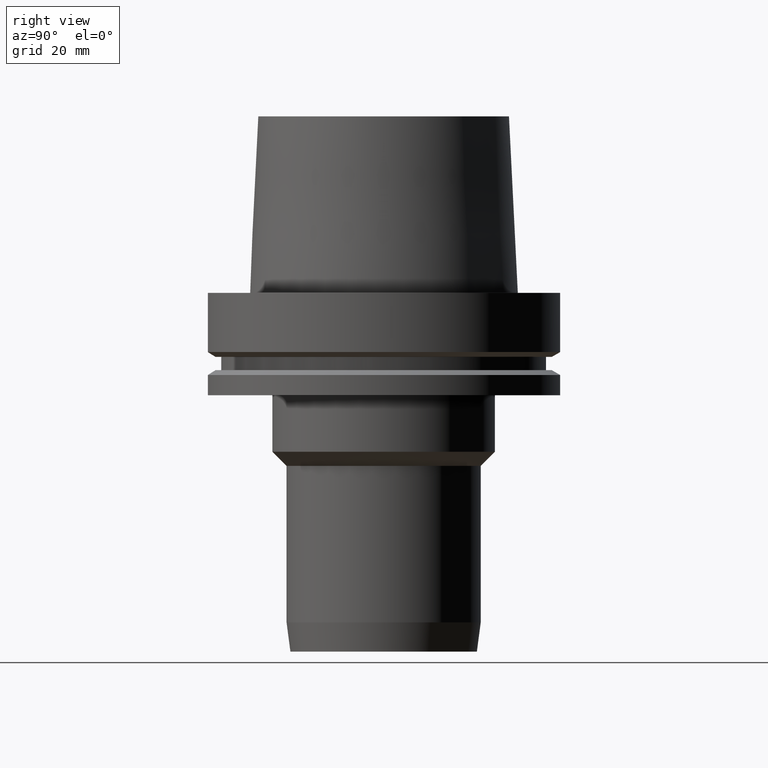
[diagram: clean part render]
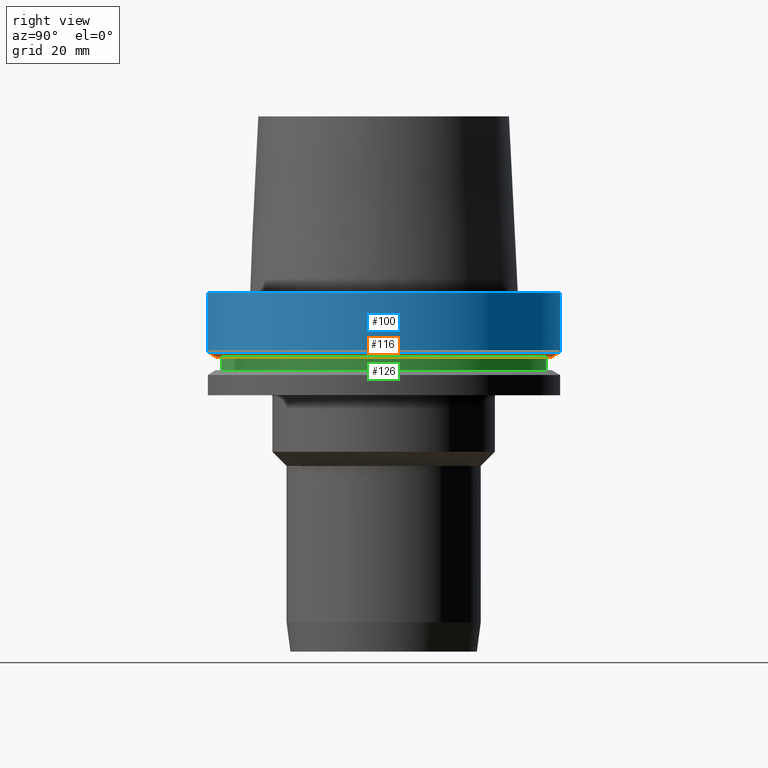
[diagram: same view with three faces highlighted in distinct colors, each labeled with its STEP entity id]
A machine part, right view with three faces highlighted in distinct colors.
Their STEP definitions:

[orange] entity #116 — the highlighted conical surface has half-angle 60 deg.
#116=ADVANCED_FACE('Unnamed[1]',(#247,#248),#249,.T.);
#123=EDGE_CURVE('Unnamed[1]',#259,#259,#260,.T.);
#128=EDGE_CURVE('Unnamed[1]',#267,#267,#268,.T.);
#247=FACE_BOUND('',#403,.T.);
#248=FACE_BOUND('',#404,.T.);
#249=CONICAL_SURFACE('',#405,48.81129763,1.04719755328238);
#259=VERTEX_POINT('',#418);
#260=CIRCLE('',#419,50.0);
#267=VERTEX_POINT('',#428);
#268=CIRCLE('',#429,47.62259526);
#403=EDGE_LOOP('',(#549));
#404=EDGE_LOOP('',(#550));
#405=AXIS2_PLACEMENT_3D('',#551,#552,#553);
#418=CARTESIAN_POINT('',(1.0257889421431E-015,50.0,-16.75240474));
#419=AXIS2_PLACEMENT_3D('',#563,#564,#565);
#428=CARTESIAN_POINT('',(1.10983616172729E-015,47.62259526,-18.125));
#429=AXIS2_PLACEMENT_3D('',#572,#573,#574);
#549=ORIENTED_EDGE('',*,*,#128,.F.);
#550=ORIENTED_EDGE('',*,*,#123,.T.);
#551=CARTESIAN_POINT('',(1.06781255193519E-015,2.13562510387038E-015,-17.43870237));
#552=DIRECTION('',(-6.12323399573677E-017,-1.22464679914711E-016,1.0));
#553=DIRECTION('',(-1.23259516440792E-032,1.0,1.22464679914711E-016));
#563=CARTESIAN_POINT('',(1.0257889421431E-015,2.05157788428619E-015,-16.75240474));
#564=DIRECTION('',(6.12323399573677E-017,1.22464679914736E-016,-1.0));
#565=DIRECTION('',(-1.23259516440783E-032,1.0,1.22464679914736E-016));
#572=CARTESIAN_POINT('',(1.10983616172729E-015,2.21967232345458E-015,-18.125));
#573=DIRECTION('',(6.12323399573676E-017,1.22464679914752E-016,-1.0));
#574=DIRECTION('',(-1.23259516440801E-032,1.0,1.22464679914752E-016));

[blue] entity #100 — the highlighted cylindrical surface (bore or boss wall) has radius 50 mm, axis along (0, 0, -1).
#100=ADVANCED_FACE('Unnamed[1]',(#221,#222),#223,.T.);
#118=EDGE_CURVE('Unnamed[1]',#251,#251,#252,.T.);
#123=EDGE_CURVE('Unnamed[1]',#259,#259,#260,.T.);
#221=FACE_BOUND('',#371,.T.);
#222=FACE_BOUND('',#372,.T.);
#223=CYLINDRICAL_SURFACE('',#373,50.0);
#251=VERTEX_POINT('',#408);
#252=CIRCLE('',#409,50.0);
#259=VERTEX_POINT('',#418);
#260=CIRCLE('',#419,50.0);
#371=EDGE_LOOP('',(#519));
#372=EDGE_LOOP('',(#520));
#373=AXIS2_PLACEMENT_3D('',#521,#522,#523);
#408=CARTESIAN_POINT('',(-1.81547968506605E-031,50.0,-9.76766004263236E-016));
#409=AXIS2_PLACEMENT_3D('',#554,#555,#556);
#418=CARTESIAN_POINT('',(1.0257889421431E-015,50.0,-16.75240474));
#419=AXIS2_PLACEMENT_3D('',#563,#564,#565);
#519=ORIENTED_EDGE('',*,*,#123,.F.);
#520=ORIENTED_EDGE('',*,*,#118,.T.);
#521=CARTESIAN_POINT('',(5.12894471071548E-016,1.0257889421431E-015,-8.37620236999999));
#522=DIRECTION('',(6.12323399573677E-017,1.22464679914736E-016,-1.0));
#523=DIRECTION('',(-1.23259516440783E-032,1.0,1.22464679914736E-016));
#554=CARTESIAN_POINT('',(0.0,0.0,0.0));
#555=DIRECTION('',(6.12323399573677E-017,1.22464679914736E-016,-1.0));
#556=DIRECTION('',(-1.23259516440783E-032,1.0,1.22464679914736E-016));
#563=CARTESIAN_POINT('',(1.0257889421431E-015,2.05157788428619E-015,-16.75240474));
#564=DIRECTION('',(6.12323399573677E-017,1.22464679914736E-016,-1.0));
#565=DIRECTION('',(-1.23259516440783E-032,1.0,1.22464679914736E-016));

[green] entity #126 — the highlighted cylindrical surface (bore or boss wall) has radius 46 mm, axis along (0, 0, -1).
#75=EDGE_CURVE('Unnamed[1]',#182,#182,#183,.T.);
#85=EDGE_CURVE('Unnamed[1]',#198,#198,#199,.T.);
#126=ADVANCED_FACE('Unnamed[1]',(#263,#264),#265,.T.);
#182=VERTEX_POINT('',#322);
#183=CIRCLE('',#323,46.0);
#198=VERTEX_POINT('',#342);
#199=CIRCLE('',#343,46.0);
#263=FACE_BOUND('',#423,.T.);
#264=FACE_BOUND('',#424,.T.);
#265=CYLINDRICAL_SURFACE('',#425,46.0);
#322=CARTESIAN_POINT('',(1.10983616172729E-015,46.0,-18.125));
#323=AXIS2_PLACEMENT_3D('',#476,#477,#478);
#342=CARTESIAN_POINT('',(1.33945743656742E-015,46.0,-21.875));
#343=AXIS2_PLACEMENT_3D('',#494,#495,#496);
#423=EDGE_LOOP('',(#567));
#424=EDGE_LOOP('',(#568));
#425=AXIS2_PLACEMENT_3D('',#569,#570,#571);
#476=CARTESIAN_POINT('',(1.10983616172729E-015,2.21967232345458E-015,-18.125));
#477=DIRECTION('',(6.12323399573677E-017,1.22464679914716E-016,-1.0));
#478=DIRECTION('',(-1.23259516440783E-032,1.0,1.22464679914716E-016));
#494=CARTESIAN_POINT('',(1.33945743656742E-015,2.67891487313484E-015,-21.875));
#495=DIRECTION('',(6.12323399573677E-017,1.22464679914716E-016,-1.0));
#496=DIRECTION('',(-1.23259516440783E-032,1.0,1.22464679914716E-016));
#567=ORIENTED_EDGE('',*,*,#85,.F.);
#568=ORIENTED_EDGE('',*,*,#75,.T.);
#569=CARTESIAN_POINT('',(1.22464679914735E-015,2.44929359829471E-015,-20.0));
#570=DIRECTION('',(6.12323399573677E-017,1.22464679914716E-016,-1.0));
#571=DIRECTION('',(-1.23259516440783E-032,1.0,1.22464679914716E-016));